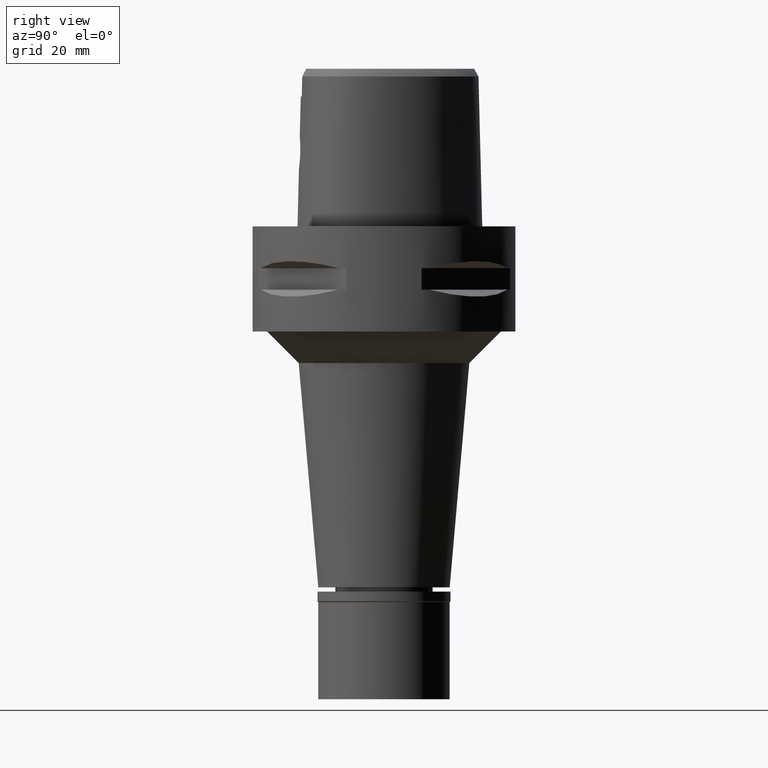
[diagram: clean part render]
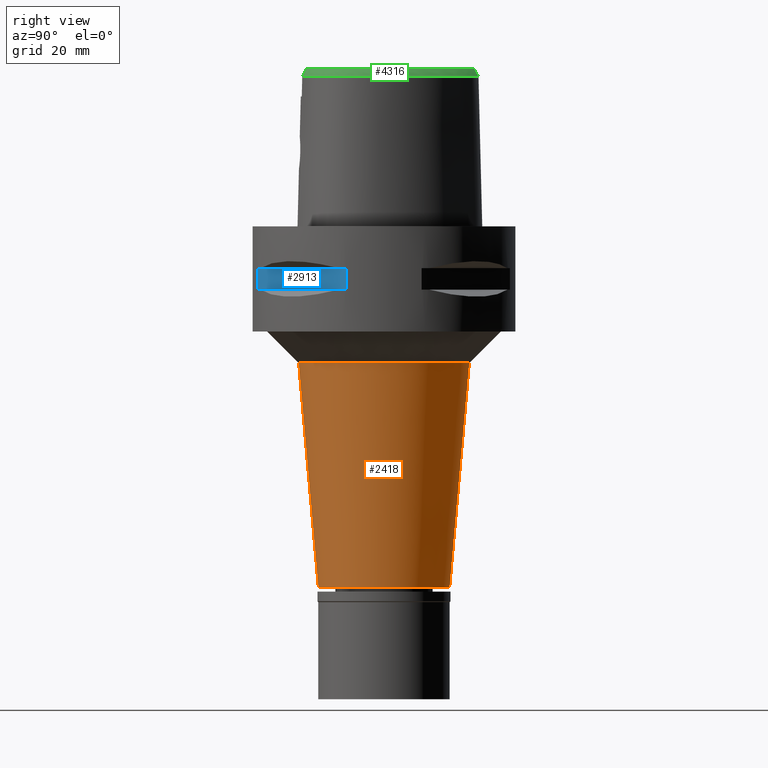
[diagram: same view with three faces highlighted in distinct colors, each labeled with its STEP entity id]
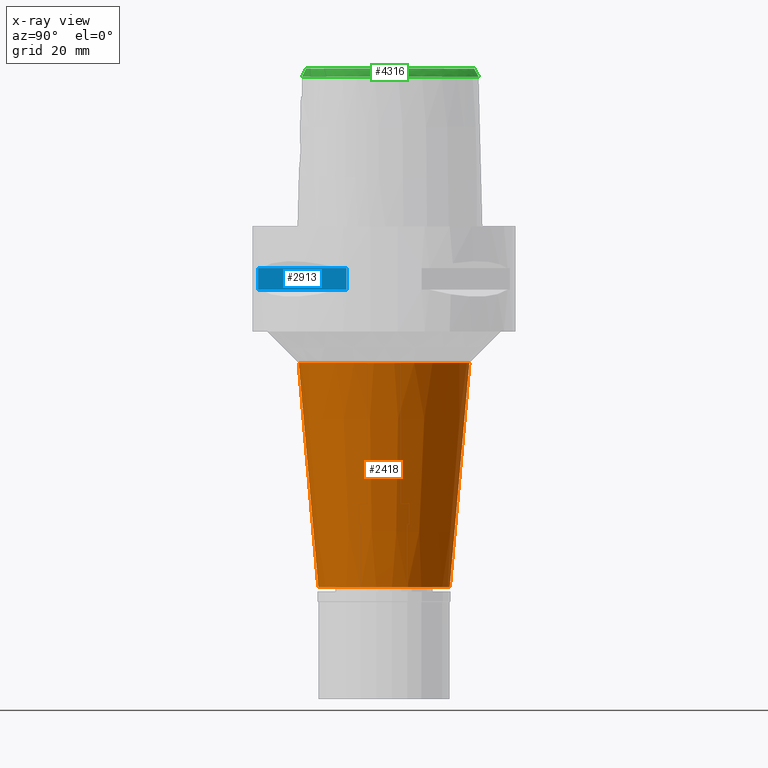
[diagram: x-ray of the same camera — body ghosted, the three highlighted faces saturated]
A machine part, right view with three faces highlighted in distinct colors.
The next image is the same camera in x-ray (body ghosted, the three faces saturated) — at least one of them is partly hidden behind the body in this view.
Their STEP definitions:

[orange] entity #2418 — the highlighted conical surface has half-angle 5 deg.
#1 = CARTESIAN_POINT ( 'NONE',  ( 0.0000000000000000000, -16.23576593255999967, -26.00000000000000000 ) ) ;
#8 = DIRECTION ( 'NONE',  ( 0.0000000000000000000, 0.0000000000000000000, 1.000000000000000000 ) ) ;
#245 = LINE ( 'NONE', #991, #1758 ) ;
#388 = AXIS2_PLACEMENT_3D ( 'NONE', #2282, #8, #2217 ) ;
#462 = ORIENTED_EDGE ( 'NONE', *, *, #1954, .T. ) ;
#704 = AXIS2_PLACEMENT_3D ( 'NONE', #4837, #1785, #3682 ) ;
#958 = DIRECTION ( 'NONE',  ( 0.0000000000000000000, 0.08715574274769373464, -0.9961946980917424366 ) ) ;
#991 = CARTESIAN_POINT ( 'NONE',  ( 0.0000000000000000000, 16.23576593255999967, -26.00000000000000000 ) ) ;
#1004 = AXIS2_PLACEMENT_3D ( 'NONE', #2919, #3740, #4471 ) ;
#1366 = LINE ( 'NONE', #2499, #2512 ) ;
#1403 = ORIENTED_EDGE ( 'NONE', *, *, #1922, .F. ) ;
#1571 = CIRCLE ( 'NONE', #1004, 16.23576593255999967 ) ;
#1758 = VECTOR ( 'NONE', #4061, 1000.000000000000000 ) ;
#1785 = DIRECTION ( 'NONE',  ( 0.0000000000000000000, 0.0000000000000000000, 1.000000000000000000 ) ) ;
#1825 = VERTEX_POINT ( 'NONE', #3790 ) ;
#1888 = VERTEX_POINT ( 'NONE', #1 ) ;
#1922 = EDGE_CURVE ( 'NONE', #3692, #3271, #245, .T. ) ;
#1954 = EDGE_CURVE ( 'NONE', #1825, #3271, #4713, .T. ) ;
#2049 = CARTESIAN_POINT ( 'NONE',  ( 0.0000000000000000000, 12.50000000000000000, -68.70000000000000284 ) ) ;
#2217 = DIRECTION ( 'NONE',  ( 0.0000000000000000000, 1.000000000000000000, 0.0000000000000000000 ) ) ;
#2282 = CARTESIAN_POINT ( 'NONE',  ( 0.0000000000000000000, 0.0000000000000000000, -47.35000000000000142 ) ) ;
#2418 = ADVANCED_FACE ( 'NONE', ( #2622 ), #4632, .T. ) ;
#2497 = ORIENTED_EDGE ( 'NONE', *, *, #4007, .F. ) ;
#2499 = CARTESIAN_POINT ( 'NONE',  ( 0.0000000000000000000, -16.23576593255999967, -26.00000000000000000 ) ) ;
#2512 = VECTOR ( 'NONE', #958, 1000.000000000000000 ) ;
#2622 = FACE_OUTER_BOUND ( 'NONE', #4663, .T. ) ;
#2919 = CARTESIAN_POINT ( 'NONE',  ( 0.0000000000000000000, 0.0000000000000000000, -26.00000000000000000 ) ) ;
#3271 = VERTEX_POINT ( 'NONE', #2049 ) ;
#3682 = DIRECTION ( 'NONE',  ( 0.0000000000000000000, -1.000000000000000000, 0.0000000000000000000 ) ) ;
#3692 = VERTEX_POINT ( 'NONE', #4875 ) ;
#3740 = DIRECTION ( 'NONE',  ( 0.0000000000000000000, 0.0000000000000000000, 1.000000000000000000 ) ) ;
#3790 = CARTESIAN_POINT ( 'NONE',  ( 0.0000000000000000000, -12.50000000000000000, -68.70000000000000284 ) ) ;
#4007 = EDGE_CURVE ( 'NONE', #1888, #3692, #1571, .T. ) ;
#4048 = ORIENTED_EDGE ( 'NONE', *, *, #4557, .T. ) ;
#4061 = DIRECTION ( 'NONE',  ( 0.0000000000000000000, -0.08715574274769373464, -0.9961946980917424366 ) ) ;
#4471 = DIRECTION ( 'NONE',  ( 0.0000000000000000000, -1.000000000000000000, 0.0000000000000000000 ) ) ;
#4557 = EDGE_CURVE ( 'NONE', #1888, #1825, #1366, .T. ) ;
#4632 = CONICAL_SURFACE ( 'NONE', #388, 14.36788296627999983, 0.08726646259969973729 ) ;
#4663 = EDGE_LOOP ( 'NONE', ( #2497, #4048, #462, #1403 ) ) ;
#4713 = CIRCLE ( 'NONE', #704, 12.50000000000000000 ) ;
#4837 = CARTESIAN_POINT ( 'NONE',  ( 0.0000000000000000000, 0.0000000000000000000, -68.70000000000000284 ) ) ;
#4875 = CARTESIAN_POINT ( 'NONE',  ( 0.0000000000000000000, 16.23576593255999967, -26.00000000000000000 ) ) ;

[blue] entity #2913 — the highlighted planar face has unit normal (-0.7071, 0.7071, 0).
#143 = CARTESIAN_POINT ( 'NONE',  ( 7.159921374235000080, -23.95277699797999915, -7.950000000000000178 ) ) ;
#317 = VECTOR ( 'NONE', #2649, 1000.000000000000000 ) ;
#394 = LINE ( 'NONE', #4631, #317 ) ;
#511 = VERTEX_POINT ( 'NONE', #3043 ) ;
#574 = ORIENTED_EDGE ( 'NONE', *, *, #4004, .T. ) ;
#597 = ORIENTED_EDGE ( 'NONE', *, *, #1608, .F. ) ;
#636 = AXIS2_PLACEMENT_3D ( 'NONE', #4746, #3882, #4184 ) ;
#1040 = CARTESIAN_POINT ( 'NONE',  ( 23.95277699797999915, -7.159921374230999724, -12.05000000000000071 ) ) ;
#1181 = EDGE_CURVE ( 'NONE', #511, #3771, #2145, .T. ) ;
#1205 = ORIENTED_EDGE ( 'NONE', *, *, #2861, .T. ) ;
#1386 = DIRECTION ( 'NONE',  ( 0.7071067811865474617, 0.7071067811865474617, 0.0000000000000000000 ) ) ;
#1447 = DIRECTION ( 'NONE',  ( 0.0000000000000000000, 0.0000000000000000000, 1.000000000000000000 ) ) ;
#1595 = VECTOR ( 'NONE', #1386, 1000.000000000000114 ) ;
#1608 = EDGE_CURVE ( 'NONE', #2136, #3771, #4768, .T. ) ;
#1812 = DIRECTION ( 'NONE',  ( 0.7071067811865474617, 0.7071067811865474617, 0.0000000000000000000 ) ) ;
#1860 = LINE ( 'NONE', #4139, #1970 ) ;
#1970 = VECTOR ( 'NONE', #1812, 1000.000000000000114 ) ;
#2131 = ORIENTED_EDGE ( 'NONE', *, *, #1181, .T. ) ;
#2136 = VERTEX_POINT ( 'NONE', #143 ) ;
#2145 = LINE ( 'NONE', #1040, #3571 ) ;
#2339 = PLANE ( 'NONE',  #636 ) ;
#2549 = CARTESIAN_POINT ( 'NONE',  ( 7.159921374230999724, -23.95277699797999915, -12.05000000000000071 ) ) ;
#2649 = DIRECTION ( 'NONE',  ( 0.0000000000000000000, 0.0000000000000000000, -1.000000000000000000 ) ) ;
#2861 = EDGE_CURVE ( 'NONE', #2136, #4570, #394, .T. ) ;
#2913 = ADVANCED_FACE ( 'NONE', ( #3418 ), #2339, .F. ) ;
#3043 = CARTESIAN_POINT ( 'NONE',  ( 23.95277699797999915, -7.159921374235000080, -12.05000000000000071 ) ) ;
#3418 = FACE_OUTER_BOUND ( 'NONE', #4016, .T. ) ;
#3571 = VECTOR ( 'NONE', #1447, 1000.000000000000000 ) ;
#3771 = VERTEX_POINT ( 'NONE', #4690 ) ;
#3882 = DIRECTION ( 'NONE',  ( -0.7071067811865475727, 0.7071067811865475727, 0.0000000000000000000 ) ) ;
#4004 = EDGE_CURVE ( 'NONE', #4570, #511, #1860, .T. ) ;
#4016 = EDGE_LOOP ( 'NONE', ( #597, #1205, #574, #2131 ) ) ;
#4023 = CARTESIAN_POINT ( 'NONE',  ( 7.159921374230999724, -23.95277699797999915, -7.950000000000000178 ) ) ;
#4139 = CARTESIAN_POINT ( 'NONE',  ( 7.159921374230999724, -23.95277699797999915, -12.05000000000000071 ) ) ;
#4184 = DIRECTION ( 'NONE',  ( 0.0000000000000000000, 0.0000000000000000000, 1.000000000000000000 ) ) ;
#4570 = VERTEX_POINT ( 'NONE', #2549 ) ;
#4631 = CARTESIAN_POINT ( 'NONE',  ( 7.159921374230999724, -23.95277699797999915, -7.950000000000000178 ) ) ;
#4690 = CARTESIAN_POINT ( 'NONE',  ( 23.95277699797999915, -7.159921374230999724, -7.950000000000000178 ) ) ;
#4746 = CARTESIAN_POINT ( 'NONE',  ( 26.16295090389999700, -4.949747468305999654, -7.950000000000000178 ) ) ;
#4768 = LINE ( 'NONE', #4023, #1595 ) ;

[green] entity #4316 — the highlighted face is a freeform B-spline surface patch.
#7 = CARTESIAN_POINT ( 'NONE',  ( 14.08238499151866563, -9.704590128438235652, 29.99999999999807088 ) ) ;
#14 = CARTESIAN_POINT ( 'NONE',  ( 5.384842991242999588, 15.80204699020999826, 29.55372573867999719 ) ) ;
#32 = CARTESIAN_POINT ( 'NONE',  ( 16.11273027397118085, -2.627494158581110018, 29.99999999999823075 ) ) ;
#37 = CARTESIAN_POINT ( 'NONE',  ( 2.658631310221999833, 17.68984271891000049, 28.38014653808000176 ) ) ;
#44 = CARTESIAN_POINT ( 'NONE',  ( 1.921862268368000004, -14.76538549806000056, 30.14051252930000047 ) ) ;
#58 = CARTESIAN_POINT ( 'NONE',  ( 15.71128456931417894, -6.534031654963433411, 30.00000000000196820 ) ) ;
#66 = CARTESIAN_POINT ( 'NONE',  ( 3.052010382550000234, 16.53105565499000207, 30.14051269513999998 ) ) ;
#71 = CARTESIAN_POINT ( 'NONE',  ( 2.133047545504000109, -15.40931671758000121, 28.96693593891000162 ) ) ;
#76 = ORIENTED_EDGE ( 'NONE', *, *, #3794, .F. ) ;
#90 = CARTESIAN_POINT ( 'NONE',  ( -0.3074208703755999528, 17.07029888960000363, 30.14051260544999877 ) ) ;
#95 = CARTESIAN_POINT ( 'NONE',  ( 2.432233337671000140, -15.38495831886999987, 28.96693593251000109 ) ) ;
#119 = CARTESIAN_POINT ( 'NONE',  ( 6.811174486074000001, -14.61620733319000109, 28.96693786959999883 ) ) ;
#126 = CARTESIAN_POINT ( 'NONE',  ( 3.168920890822999770, -15.55911073834000113, 28.52071374672999582 ) ) ;
#149 = CARTESIAN_POINT ( 'NONE',  ( 12.38664714351000029, -12.06075710862000072, 28.96693586676999743 ) ) ;
#154 = CARTESIAN_POINT ( 'NONE',  ( -2.941211737637999918E-11, 17.98202997909999823, 28.52071728569000086 ) ) ;
#160 = CARTESIAN_POINT ( 'NONE',  ( 11.36765809995644538, -12.04801986072844322, 30.00000000000396128 ) ) ;
#170 = CARTESIAN_POINT ( 'NONE',  ( 14.08810199278999953, -10.57731862949999879, 28.96693530919999660 ) ) ;
#191 = CARTESIAN_POINT ( 'NONE',  ( 14.65177458938000044, -9.369218276904998532, 29.55372394577999984 ) ) ;
#197 = CARTESIAN_POINT ( 'NONE',  ( 16.01658383235200134, -8.155509186612746930, 28.52071728562172837 ) ) ;
#215 = CARTESIAN_POINT ( 'NONE',  ( 15.40052568780000009, 4.453192718785999205, 28.38014655049000368 ) ) ;
#243 = CARTESIAN_POINT ( 'NONE',  ( 16.37561560669000116, -3.537278494618999680, 29.55372404629999750 ) ) ;
#267 = CARTESIAN_POINT ( 'NONE',  ( 15.95405015895000034, 1.814142231963999929, 28.96693759024000059 ) ) ;
#282 = EDGE_LOOP ( 'NONE', ( #1316, #4919, #1368, #76 ) ) ;
#296 = CARTESIAN_POINT ( 'NONE',  ( 16.28938000961999677, -1.628007936664999988, 29.55372382860000258 ) ) ;
#312 = CARTESIAN_POINT ( 'NONE',  ( 2.935843368207930126, -15.25651436815354955, 29.10537844853215361 ) ) ;
#319 = CARTESIAN_POINT ( 'NONE',  ( 16.25451265234999809, 0.6177666175659000114, 28.96693787772999684 ) ) ;
#341 = CARTESIAN_POINT ( 'NONE',  ( 4.000709298667000091, 16.86754875232999851, 28.96693596017000161 ) ) ;
#356 = CARTESIAN_POINT ( 'NONE',  ( 7.700998872106077364, 13.84384558891734862, 30.00000000000011013 ) ) ;
#362 = CARTESIAN_POINT ( 'NONE',  ( 6.004271154259999577, 15.02806850023000074, 30.14051227387000154 ) ) ;
#368 = CARTESIAN_POINT ( 'NONE',  ( 3.237448863581000147, -15.63618251891999833, 28.38014735312000170 ) ) ;
#391 = CARTESIAN_POINT ( 'NONE',  ( 10.97319805495000189, 11.82804331828999977, 28.38014620969000035 ) ) ;
#403 = CARTESIAN_POINT ( 'NONE',  ( 9.420872132874633209, 12.20574557692214412, 30.00000000000486367 ) ) ;
#411 = CARTESIAN_POINT ( 'NONE',  ( 2.391487689239999881, 16.73975032641000027, 30.14051262350000115 ) ) ;
#438 = CARTESIAN_POINT ( 'NONE',  ( 10.21869535375999938, 11.19221274396999988, 30.14051265197999996 ) ) ;
#446 = FACE_OUTER_BOUND ( 'NONE', #282, .T. ) ;
#489 = CARTESIAN_POINT ( 'NONE',  ( 0.04121547371527999742, 17.73777056367000071, 28.96693552842999964 ) ) ;
#494 = CARTESIAN_POINT ( 'NONE',  ( 7.967773323592998835, -14.26331133054999967, 28.96693740293999753 ) ) ;
#501 = CARTESIAN_POINT ( 'NONE',  ( 8.702202469521727934, -14.36510984285853709, 28.52071728562172837 ) ) ;
#509 = CARTESIAN_POINT ( 'NONE',  ( -0.5036733629276000102, 17.71834787971000225, 28.96693513610000181 ) ) ;
#516 = CARTESIAN_POINT ( 'NONE',  ( 13.84811418115999793, -10.35229244706000173, 29.55372396117999756 ) ) ;
#544 = CARTESIAN_POINT ( 'NONE',  ( 11.32585868520000005, -11.98125551210000062, 30.14051255302999976 ) ) ;
#566 = CARTESIAN_POINT ( 'NONE',  ( 9.861911559301999475, -13.15199557610000092, 29.55372391046000047 ) ) ;
#570 = CARTESIAN_POINT ( 'NONE',  ( 10.91764517732714701, 11.98972036053745249, 28.52071728562172837 ) ) ;
#587 = CARTESIAN_POINT ( 'NONE',  ( 10.14129968424000161, -13.74757697528999856, 28.38014647311999994 ) ) ;
#594 = CARTESIAN_POINT ( 'NONE',  ( 16.79165444020016906, -0.3537785292841598705, 28.52071728562172837 ) ) ;
#619 = CARTESIAN_POINT ( 'NONE',  ( 15.82504009140000001, -7.948414864584999684, 28.96693559200999957 ) ) ;
#646 = CARTESIAN_POINT ( 'NONE',  ( 16.04671018212999911, -3.532260125042999910, 30.14051258635999986 ) ) ;
#673 = CARTESIAN_POINT ( 'NONE',  ( 15.95231308912999779, -6.601166305710000515, 29.55372395456999968 ) ) ;
#694 = CARTESIAN_POINT ( 'NONE',  ( 16.00715878721999630, -4.367842876386000661, 30.14051252060000152 ) ) ;
#716 = CARTESIAN_POINT ( 'NONE',  ( 17.03342645580999815, -3.547315233773000287, 28.38014696616999899 ) ) ;
#734 = CARTESIAN_POINT ( 'NONE',  ( 13.18218336246000000, 8.168799837366000460, 28.96693536031999727 ) ) ;
#741 = CARTESIAN_POINT ( 'NONE',  ( 3.159961295565999695, -14.98314818236999990, 29.55372415290000276 ) ) ;
#751 = CARTESIAN_POINT ( 'NONE',  ( 6.048015628560480472, 15.09357031579971675, 30.00000000000443023 ) ) ;
#760 = CARTESIAN_POINT ( 'NONE',  ( 11.84323152169000082, 10.73870846447000105, 28.38014746786999964 ) ) ;
#782 = CARTESIAN_POINT ( 'NONE',  ( 3.078265684543687986, 16.60532678263555439, 29.99999999999645439 ) ) ;
#787 = CARTESIAN_POINT ( 'NONE',  ( 3.161654014662999668, 16.84121610174999972, 29.55372370078000088 ) ) ;
#803 = CARTESIAN_POINT ( 'NONE',  ( 15.04259016984781283, -8.247723288182768897, 30.00000000000085976 ) ) ;
#811 = CARTESIAN_POINT ( 'NONE',  ( 1.893266613400999887, 17.53850787448999782, 28.96693556228999711 ) ) ;
#829 = CARTESIAN_POINT ( 'NONE',  ( 12.65514534656777457, -11.12483370673908922, 30.00000000000073896 ) ) ;
#836 = CARTESIAN_POINT ( 'NONE',  ( 2.569583436560999967, 17.37314525473999893, 28.96693523321999919 ) ) ;
#867 = CARTESIAN_POINT ( 'NONE',  ( 11.67497214465999988, -12.53887893467000048, 28.96693575129000209 ) ) ;
#875 = CARTESIAN_POINT ( 'NONE',  ( 13.06460231238018643, -11.91950040983343584, 28.52071728562172837 ) ) ;
#884 = CARTESIAN_POINT ( 'NONE',  ( -0.3321134945152000584, 17.72742049228000027, 28.96693536585999951 ) ) ;
#890 = CARTESIAN_POINT ( 'NONE',  ( 11.50041541492999997, -12.26006722339000099, 29.55372415216000093 ) ) ;
#906 = CARTESIAN_POINT ( 'NONE',  ( -0.4668346977426000022, 17.06194383161999895, 30.14051263669999869 ) ) ;
#911 = CARTESIAN_POINT ( 'NONE',  ( 12.60526061847999912, -11.06386714269999949, 30.14051262002999820 ) ) ;
#942 = CARTESIAN_POINT ( 'NONE',  ( 9.722217496833000183, -12.85420487650999988, 30.14051262913000073 ) ) ;
#967 = CARTESIAN_POINT ( 'NONE',  ( 5.568859615817999931, -14.92117509047000112, 28.96693607114999836 ) ) ;
#989 = CARTESIAN_POINT ( 'NONE',  ( 14.79032469554000073, 4.207552095258000335, 29.55372393177999868 ) ) ;
#1020 = CARTESIAN_POINT ( 'NONE',  ( 13.60462689014999960, 6.754302847915000463, 29.55372408130000039 ) ) ;
#1046 = CARTESIAN_POINT ( 'NONE',  ( 14.18547196205000027, 7.062997818472999789, 28.38014709322000328 ) ) ;
#1074 = CARTESIAN_POINT ( 'NONE',  ( 16.47329664958999729, -0.5202430178087000812, 28.96693603917999837 ) ) ;
#1090 = CARTESIAN_POINT ( 'NONE',  ( -6.301949014338000629E-11, 17.15328888647999861, 30.00000000000000000 ) ) ;
#1096 = CARTESIAN_POINT ( 'NONE',  ( 15.44272454256999971, -7.122436889924999903, 30.14051258420000323 ) ) ;
#1113 = CARTESIAN_POINT ( 'NONE',  ( 0.1912597614439708604, 17.15328888648586059, 30.00000000000288480 ) ) ;
#1121 = CARTESIAN_POINT ( 'NONE',  ( 1.241796034502999913, 17.65204401532000134, 28.96693517623000247 ) ) ;
#1142 = CARTESIAN_POINT ( 'NONE',  ( 12.13398532104000083, 9.201179046687000707, 29.55372432887000045 ) ) ;
#1171 = CARTESIAN_POINT ( 'NONE',  ( 3.741921041058999808, 16.26266237366999690, 30.14051252462000008 ) ) ;
#1190 = CARTESIAN_POINT ( 'NONE',  ( 15.68929135223808657, 0.4919393172822907889, 30.00000000000152767 ) ) ;
#1197 = CARTESIAN_POINT ( 'NONE',  ( 11.86140099238999923, 9.017150876663999171, 30.14051249738999871 ) ) ;
#1222 = CARTESIAN_POINT ( 'NONE',  ( 8.729671319433998988, 13.25525514005000005, 29.55372469446000139 ) ) ;
#1239 = CARTESIAN_POINT ( 'NONE',  ( 2.406543924163999648, -14.80491841401999942, 30.00000000000000000 ) ) ;
#1252 = CARTESIAN_POINT ( 'NONE',  ( 6.724245598578000305, -14.29899810459999898, 29.55372506724999937 ) ) ;
#1267 = CARTESIAN_POINT ( 'NONE',  ( -0.5220926955200999586, 18.04654990375000168, 28.38014638581000071 ) ) ;
#1274 = CARTESIAN_POINT ( 'NONE',  ( 13.81147726622999983, -11.31863543819000029, 28.38014658610000041 ) ) ;
#1294 = CARTESIAN_POINT ( 'NONE',  ( 12.81358207582999853, -11.31846697629999987, 29.55372393934999664 ) ) ;
#1316 = ORIENTED_EDGE ( 'NONE', *, *, #3941, .F. ) ;
#1321 = CARTESIAN_POINT ( 'NONE',  ( 10.88175423206000048, -13.00339884647999966, 28.96693530345999790 ) ) ;
#1326 = CARTESIAN_POINT ( 'NONE',  ( 7.523733068098906074, 15.26501041874047182, 28.52071728562172837 ) ) ;
#1339 = CARTESIAN_POINT ( 'NONE',  ( 0.6328249377374000062, 18.04605711805999846, 28.38014651065000393 ) ) ;
#1347 = CARTESIAN_POINT ( 'NONE',  ( 14.97818226747999937, -8.872772446718999007, 29.55372401636999768 ) ) ;
#1352 = CARTESIAN_POINT ( 'NONE',  ( 5.902447799197267919, -15.16907841529366685, 28.52071728562172837 ) ) ;
#1358 = VERTEX_POINT ( 'NONE', #3004 ) ;
#1368 = ORIENTED_EDGE ( 'NONE', *, *, #1381, .T. ) ;
#1373 = CARTESIAN_POINT ( 'NONE',  ( 16.12711015945999904, -8.078767691887000169, 28.38014710066000035 ) ) ;
#1381 = EDGE_CURVE ( 'NONE', #4766, #4018, #3978, .T. ) ;
#1399 = CARTESIAN_POINT ( 'NONE',  ( 16.79788139621000198, -0.4670338128402999889, 28.38014780184000330 ) ) ;
#1426 = CARTESIAN_POINT ( 'NONE',  ( 15.87958186209999845, 3.162385515932999880, 28.38014673181000092 ) ) ;
#1452 = CARTESIAN_POINT ( 'NONE',  ( 15.75299259312000189, -7.231838119275000309, 29.55372405313000073 ) ) ;
#1479 = CARTESIAN_POINT ( 'NONE',  ( 15.63539533435999829, -6.512893918699000473, 30.14051261523999869 ) ) ;
#1498 = CARTESIAN_POINT ( 'NONE',  ( 6.186950563102000089, 15.30160780177000035, 29.55372503878999879 ) ) ;
#1526 = CARTESIAN_POINT ( 'NONE',  ( 7.863115827153000836, 14.03435638335000135, 29.55372413134000098 ) ) ;
#1550 = CARTESIAN_POINT ( 'NONE',  ( 6.815713255539999516, 14.45216265505999864, 30.14051266080999980 ) ) ;
#1567 = CARTESIAN_POINT ( 'NONE',  ( 15.39668103802219434, 1.657188505494436637, 29.99999999999986500 ) ) ;
#1574 = CARTESIAN_POINT ( 'NONE',  ( 9.363485995477999424, 12.15180323787999939, 30.14051245109999755 ) ) ;
#1582 = CARTESIAN_POINT ( 'NONE',  ( 1.945546332399000100, -15.09326875030000004, 29.55372422752999739 ) ) ;
#1597 = CARTESIAN_POINT ( 'NONE',  ( -6.301949014338000629E-11, 17.15328888647999861, 30.00000000000000000 ) ) ;
#1604 = CARTESIAN_POINT ( 'NONE',  ( 10.72169715455000016, 11.61609979352000011, 28.96693502379000051 ) ) ;
#1621 = CARTESIAN_POINT ( 'NONE',  ( 12.04928217775903576, -11.59002493207010609, 30.00000000000034106 ) ) ;
#1633 = CARTESIAN_POINT ( 'NONE',  ( 14.97258381857000131, -8.211583783153999505, 30.14051263826999616 ) ) ;
#1655 = CARTESIAN_POINT ( 'NONE',  ( 4.147325389105999349, -14.51990146791000136, 30.14051265628999943 ) ) ;
#1683 = CARTESIAN_POINT ( 'NONE',  ( 13.23022499054000001, -11.82766664348999974, 28.38014657800000151 ) ) ;
#1688 = CARTESIAN_POINT ( 'NONE',  ( 0.6295828025440908249, 17.98202997637302403, 28.52071728562172837 ) ) ;
#1693 = CARTESIAN_POINT ( 'NONE',  ( 7.783816186093288181, -13.71424622167448781, 30.00000000000367706 ) ) ;
#1704 = CARTESIAN_POINT ( 'NONE',  ( 14.32808980442000113, -10.80234481194999852, 28.38014665721000185 ) ) ;
#1729 = CARTESIAN_POINT ( 'NONE',  ( 14.92014046847000053, -9.559532954651999148, 28.96693527354999631 ) ) ;
#1735 = CARTESIAN_POINT ( 'NONE',  ( 15.07117004566646656, -9.793013887526274885, 28.52071728562172837 ) ) ;
#1760 = CARTESIAN_POINT ( 'NONE',  ( 16.06326064367999962, -7.341239348624999828, 28.96693552205999822 ) ) ;
#1783 = CARTESIAN_POINT ( 'NONE',  ( 16.76252015593999900, -6.055132314039999741, 28.38014653006000287 ) ) ;
#1808 = CARTESIAN_POINT ( 'NONE',  ( 16.58614859865999946, -6.777711079731999710, 28.38014663320999986 ) ) ;
#1833 = CARTESIAN_POINT ( 'NONE',  ( 15.79637400819999726, -5.853715158355999648, 30.14051262418999855 ) ) ;
#1854 = CARTESIAN_POINT ( 'NONE',  ( 14.94579515957999938, 2.843627847750000104, 30.14051260668999888 ) ) ;
#1871 = CARTESIAN_POINT ( 'NONE',  ( 11.92667412982201824, 9.061218325782480321, 30.00000000000257216 ) ) ;
#1878 = CARTESIAN_POINT ( 'NONE',  ( 12.67915397834000046, 9.569235386735000404, 28.38014799182999681 ) ) ;
#1895 = CARTESIAN_POINT ( 'NONE',  ( 10.27891984618326582, 11.24296481357247046, 30.00000000000193978 ) ) ;
#1901 = CARTESIAN_POINT ( 'NONE',  ( 6.552309380787000315, 15.84868640482999957, 28.38015056861999952 ) ) ;
#1907 = CARTESIAN_POINT ( 'NONE',  ( 2.081702592979000066, -14.75383747165999893, 30.14051252751000121 ) ) ;
#1918 = CARTESIAN_POINT ( 'NONE',  ( 15.29323375804932716, -7.718923543003278986, 29.99999999999997868 ) ) ;
#1925 = CARTESIAN_POINT ( 'NONE',  ( 8.956554802729000286, 13.49338032572999957, 28.96693700663000115 ) ) ;
#1950 = CARTESIAN_POINT ( 'NONE',  ( 2.480535562900000102, 17.05644779057999827, 29.55372392835999662 ) ) ;
#1967 = CARTESIAN_POINT ( 'NONE',  ( 1.161482229273798517, 17.07843133414732506, 30.00000000000662581 ) ) ;
#1973 = CARTESIAN_POINT ( 'NONE',  ( 4.908539869882999618, 16.80845767078999842, 28.38015184312999750 ) ) ;
#1980 = CARTESIAN_POINT ( 'NONE',  ( 2.107375069241999910, -15.08157709462000007, 29.55372423321000142 ) ) ;
#1996 = CARTESIAN_POINT ( 'NONE',  ( 8.816245487876752662, -13.33426548781559617, 30.00000000000306954 ) ) ;
#2024 = CARTESIAN_POINT ( 'NONE',  ( -0.3444598065851000035, 18.05598129361999682, 28.38014674607000032 ) ) ;
#2030 = CARTESIAN_POINT ( 'NONE',  ( 5.499423431311999622, -14.59968869839000050, 29.55372429033999992 ) ) ;
#2052 = CARTESIAN_POINT ( 'NONE',  ( 6.898103373569000496, -14.93341656177999965, 28.38015067195000185 ) ) ;
#2080 = CARTESIAN_POINT ( 'NONE',  ( 5.429987246807000290, -14.27820230630999987, 30.14051250952000061 ) ) ;
#2084 = CARTESIAN_POINT ( 'NONE',  ( 1.893775678556047115, 17.84807068955350218, 28.52071728562172837 ) ) ;
#2101 = CARTESIAN_POINT ( 'NONE',  ( 14.53074662256000060, -10.07126478230000011, 28.96693568757999770 ) ) ;
#2107 = CARTESIAN_POINT ( 'NONE',  ( 16.85489147434073942, -5.354527548487850730, 28.52071728562172837 ) ) ;
#2125 = CARTESIAN_POINT ( 'NONE',  ( 8.787011040104999893, -13.26112865356000015, 30.14051260703000068 ) ) ;
#2151 = CARTESIAN_POINT ( 'NONE',  ( 16.11842272411000110, -5.920854210249999028, 29.55372392614999910 ) ) ;
#2177 = CARTESIAN_POINT ( 'NONE',  ( 16.61650944796999951, -1.593682640597000155, 28.96693500230000140 ) ) ;
#2201 = CARTESIAN_POINT ( 'NONE',  ( 15.92183250479000201, -5.140425741751999844, 30.14051259983000008 ) ) ;
#2214 = CARTESIAN_POINT ( 'NONE',  ( 3.168920890822999770, -15.55911073834000113, 28.52071374672999582 ) ) ;
#2222 = CARTESIAN_POINT ( 'NONE',  ( 16.99107389773000065, -4.444011068304999590, 28.38014772424000043 ) ) ;
#2243 = CARTESIAN_POINT ( 'NONE',  ( 15.25705739375000114, 2.949880403811000029, 29.55372398172999837 ) ) ;
#2264 = CARTESIAN_POINT ( 'NONE',  ( 12.61840452982999849, 7.829939232066998933, 30.14051260620999884 ) ) ;
#2288 = CARTESIAN_POINT ( 'NONE',  ( 4.612230013747000257, 16.22106365799999850, 29.55372538991999676 ) ) ;
#2307 = CARTESIAN_POINT ( 'NONE',  ( 13.38374903490186085, 6.636915464740175352, 30.00000000000343903 ) ) ;
#2309 = LINE ( 'NONE', #4127, #2454 ) ;
#2313 = CARTESIAN_POINT ( 'NONE',  ( 3.271297646774999901, 17.15137654851000093, 28.96693470641000090 ) ) ;
#2327 = CARTESIAN_POINT ( 'NONE',  ( 13.66559393375219500, -10.18115111193617217, 30.00000000000306244 ) ) ;
#2335 = CARTESIAN_POINT ( 'NONE',  ( 7.410974982333000227, 15.23916624549999810, 28.38014610787000080 ) ) ;
#2363 = CARTESIAN_POINT ( 'NONE',  ( 2.373596883848000161, -14.73007242907000069, 30.14051252838000039 ) ) ;
#2384 = CARTESIAN_POINT ( 'NONE',  ( 4.251280723409999851, -15.16942524661999947, 28.96693499210000411 ) ) ;
#2409 = CARTESIAN_POINT ( 'NONE',  ( 13.60812636954000077, -10.12726626461000023, 30.14051261315999852 ) ) ;
#2427 = CARTESIAN_POINT ( 'NONE',  ( -0.3197671824454000333, 17.39885969094000373, 29.55372398564999870 ) ) ;
#2434 = CARTESIAN_POINT ( 'NONE',  ( 7.758795199190000602, -13.63956496121999962, 30.14051232837999805 ) ) ;
#2446 = CARTESIAN_POINT ( 'NONE',  ( 13.19176257967162158, -10.65479018522716714, 30.00000000000438760 ) ) ;
#2454 = VECTOR ( 'NONE', #4298, 1000.000000000000000 ) ;
#2462 = CARTESIAN_POINT ( 'NONE',  ( 6.637316711081999721, -13.98178887600999865, 30.14051226489999991 ) ) ;
#2484 = CARTESIAN_POINT ( 'NONE',  ( 15.54008742577999946, -9.215192597320001511, 28.38014685754999888 ) ) ;
#2505 = CARTESIAN_POINT ( 'NONE',  ( 14.23764764446999997, 5.482974161589999618, 29.55372425450000051 ) ) ;
#2507 = EDGE_CURVE ( 'NONE', #1358, #4766, #2309, .T. ) ;
#2513 = CARTESIAN_POINT ( 'NONE',  ( 2.406543924163999648, -14.80491841401999942, 30.00000000000000000 ) ) ;
#2535 = CARTESIAN_POINT ( 'NONE',  ( 15.52297002334000098, -7.818062037283000087, 29.55372408335000145 ) ) ;
#2556 = CARTESIAN_POINT ( 'NONE',  ( 17.01983083549000142, -2.586299005654999927, 28.38014670039000009 ) ) ;
#2583 = CARTESIAN_POINT ( 'NONE',  ( 15.93346262738999997, 0.5462957478584999915, 29.55372507075999877 ) ) ;
#2596 = CARTESIAN_POINT ( 'NONE',  ( 1.774127352510514566, 16.97169788998755990, 29.99999999999788614 ) ) ;
#2606 = CARTESIAN_POINT ( 'NONE',  ( 16.66310219422999950, -4.418621670999000273, 28.96693598969000050 ) ) ;
#2626 = CARTESIAN_POINT ( 'NONE',  ( 1.287414890636000120, 17.97786040895000070, 28.38014644872000147 ) ) ;
#2631 = CARTESIAN_POINT ( 'NONE',  ( 2.461551564583000395, -15.71240126377000301, 28.38014763456999745 ) ) ;
#2639 = CARTESIAN_POINT ( 'NONE',  ( 15.51702143705642989, -7.148634146069402284, 29.99999999999621991 ) ) ;
#2646 = CARTESIAN_POINT ( 'NONE',  ( 9.842781532707000736, 12.60233578011999889, 28.96693650069000014 ) ) ;
#2669 = CARTESIAN_POINT ( 'NONE',  ( 7.649955403470000803, 13.78386215437999951, 30.14051255958000297 ) ) ;
#2691 = CARTESIAN_POINT ( 'NONE',  ( 15.99982784346029874, -5.151471542954475069, 29.99999999999904077 ) ) ;
#2696 = CARTESIAN_POINT ( 'NONE',  ( 8.502787836139001243, 13.01712995436999876, 30.14051238228999807 ) ) ;
#2724 = CARTESIAN_POINT ( 'NONE',  ( 10.08242930131999948, 12.82760205123999953, 28.38014852549000011 ) ) ;
#2749 = CARTESIAN_POINT ( 'NONE',  ( 0.5867229764426999949, 17.38966624609000178, 29.55372392079999955 ) ) ;
#2757 = CARTESIAN_POINT ( 'NONE',  ( 15.55728481549000186, -8.513425033738000636, 28.96693512456999997 ) ) ;
#2773 = CARTESIAN_POINT ( 'NONE',  ( 0.04266069986263000546, 18.06672697464999899, 28.38014700098000276 ) ) ;
#2779 = CARTESIAN_POINT ( 'NONE',  ( 4.303258390562000102, -15.49418713596999986, 28.38014616000999979 ) ) ;
#2790 = CARTESIAN_POINT ( 'NONE',  ( 4.159771979224407445, -14.59766906204064085, 30.00000000000368772 ) ) ;
#2801 = CARTESIAN_POINT ( 'NONE',  ( 13.13800602793999950, -10.59720557015000075, 30.14051261932999992 ) ) ;
#2821 = B_SPLINE_CURVE_WITH_KNOTS ( 'NONE', 3,
 ( #2214, #312, #4898, #4527 ),
 .UNSPECIFIED., .F., .F.,
 ( 4, 4 ),
 ( 0.0000000000000000000, 1.000000000000000000 ),
 .UNSPECIFIED. ) ;
#2830 = CARTESIAN_POINT ( 'NONE',  ( 14.02140094571999995, -9.654716762083998205, 30.14051256169000226 ) ) ;
#2857 = CARTESIAN_POINT ( 'NONE',  ( 15.25913484663000119, -9.043982522019000214, 28.96693543696000361 ) ) ;
#2883 = CARTESIAN_POINT ( 'NONE',  ( 16.70452103124999965, -3.542296864195999984, 28.96693550622999780 ) ) ;
#2910 = CARTESIAN_POINT ( 'NONE',  ( 15.63746023188000045, 1.724991313925000158, 29.55372494657000360 ) ) ;
#2941 = CARTESIAN_POINT ( 'NONE',  ( 14.48522419941000017, 4.084731783494000013, 30.14051262241999751 ) ) ;
#2967 = CARTESIAN_POINT ( 'NONE',  ( 15.82412715634999856, -0.6266614277454999327, 30.14051251387000008 ) ) ;
#2987 = CARTESIAN_POINT ( 'NONE',  ( 15.61241260243999918, 0.4748248781511000272, 30.14051226380000159 ) ) ;
#3004 = CARTESIAN_POINT ( 'NONE',  ( -2.941211737637999918E-11, 17.98202997909999823, 28.52071728569000086 ) ) ;
#3011 = CARTESIAN_POINT ( 'NONE',  ( 8.076276250837000958, 14.28485061231999964, 28.96693570310999988 ) ) ;
#3028 = CARTESIAN_POINT ( 'NONE',  ( 3.772905803808013658, 16.33508552418743776, 30.00000000000371259 ) ) ;
#3036 = CARTESIAN_POINT ( 'NONE',  ( 5.218916903884000646, 15.51802211337999893, 30.14051205350000018 ) ) ;
#3058 = CARTESIAN_POINT ( 'NONE',  ( 12.90029394615000058, 7.999369534716000096, 29.55372398326999672 ) ) ;
#3076 = CARTESIAN_POINT ( 'NONE',  ( 16.12546998863012959, -3.533461825553980251, 30.00000000000328981 ) ) ;
#3084 = CARTESIAN_POINT ( 'NONE',  ( 1.757922589123999790, 16.89460305479000013, 30.14051257873000367 ) ) ;
#3090 = CARTESIAN_POINT ( 'NONE',  ( 1.969230396430999841, -15.42115200255000040, 28.96693592575999787 ) ) ;
#3109 = CARTESIAN_POINT ( 'NONE',  ( 1.960938625539999647, 17.86046028434000021, 28.38014705407000093 ) ) ;
#3126 = CARTESIAN_POINT ( 'NONE',  ( 3.130495111450500634, -14.73481892791673609, 29.99999999999862865 ) ) ;
#3140 = CARTESIAN_POINT ( 'NONE',  ( 14.27607378414000117, -9.862990772189998978, 29.55372412463000131 ) ) ;
#3161 = CARTESIAN_POINT ( 'NONE',  ( 11.84952887439000158, -12.81769064596000085, 28.38014735043000059 ) ) ;
#3187 = CARTESIAN_POINT ( 'NONE',  ( 7.863284261391000562, -13.95143814587999920, 29.55372486565999779 ) ) ;
#3193 = CARTESIAN_POINT ( 'NONE',  ( 13.75951381385727856, 7.944084035686202583, 28.52071728562172837 ) ) ;
#3209 = CARTESIAN_POINT ( 'NONE',  ( 12.19502126059999902, -11.79337762912000009, 29.55372420203999795 ) ) ;
#3216 = CARTESIAN_POINT ( 'NONE',  ( 4.422474504765997239, 17.08283549832869141, 28.52071728562172837 ) ) ;
#3238 = CARTESIAN_POINT ( 'NONE',  ( 15.18850634754999973, -9.749847632398999764, 28.38014660131999989 ) ) ;
#3244 = CARTESIAN_POINT ( 'NONE',  ( 14.26907046693052017, -10.79012245165108475, 28.52071728562172837 ) ) ;
#3265 = CARTESIAN_POINT ( 'NONE',  ( 13.93949670171000044, 5.344139989629999477, 30.14051252080000154 ) ) ;
#3269 = CARTESIAN_POINT ( 'NONE',  ( 15.58740368722634528, -8.999391713747257882, 28.52071728562172837 ) ) ;
#3290 = CARTESIAN_POINT ( 'NONE',  ( 16.36264008662000080, -2.616144730098000082, 29.55372397306999943 ) ) ;
#3315 = CARTESIAN_POINT ( 'NONE',  ( 15.56831962791999935, 3.056132959871999955, 28.96693535676999787 ) ) ;
#3342 = CARTESIAN_POINT ( 'NONE',  ( 16.33513049071999745, -4.393232273691999978, 29.55372425514999790 ) ) ;
#3365 = CARTESIAN_POINT ( 'NONE',  ( 16.37352869422999646, -7.450640577975000234, 28.38014699098999927 ) ) ;
#3388 = CARTESIAN_POINT ( 'NONE',  ( 1.150558322237000164, 17.00041122806000260, 30.14051263124999736 ) ) ;
#3407 = CARTESIAN_POINT ( 'NONE',  ( 12.68590586676731569, 7.870511070825057409, 30.00000000000682121 ) ) ;
#3415 = CARTESIAN_POINT ( 'NONE',  ( 13.46407277877000119, 8.338230140014999847, 28.38014673737999871 ) ) ;
#3432 = CARTESIAN_POINT ( 'NONE',  ( 14.44767169633420600, -9.224476417585313115, 30.00000000000399680 ) ) ;
#3440 = CARTESIAN_POINT ( 'NONE',  ( 5.550769078601000217, 16.08607186703999758, 28.96693942386000131 ) ) ;
#3458 = CARTESIAN_POINT ( 'NONE',  ( 16.04058509949143385, -1.654113685487794694, 30.00000000000034817 ) ) ;
#3464 = CARTESIAN_POINT ( 'NONE',  ( 10.47019625414999844, 11.40415626873999955, 29.55372383788000334 ) ) ;
#3489 = CARTESIAN_POINT ( 'NONE',  ( 4.130103427471000010, 17.16999194165999754, 28.38014767794000193 ) ) ;
#3511 = CARTESIAN_POINT ( 'NONE',  ( 5.446614459517288509, -14.35518554873148744, 30.00000000000132516 ) ) ;
#3517 = CARTESIAN_POINT ( 'NONE',  ( 0.6097739570899999295, 17.71786168206999790, 28.96693521573000041 ) ) ;
#3522 = CARTESIAN_POINT ( 'NONE',  ( 2.402915110759999973, -15.05751537397000028, 29.55372423044999763 ) ) ;
#3546 = CARTESIAN_POINT ( 'NONE',  ( 8.072262385794001460, -14.57518451521000102, 28.38014994022000081 ) ) ;
#3552 = CARTESIAN_POINT ( 'NONE',  ( 3.738627708319586240, -15.49270856215191117, 28.52071728562172837 ) ) ;
#3558 = CARTESIAN_POINT ( 'NONE',  ( 2.538962679605270001, -14.79292722369254953, 30.00000000000271783 ) ) ;
#3574 = CARTESIAN_POINT ( 'NONE',  ( 13.02190353319000060, -11.57306680989000114, 28.96693525867999597 ) ) ;
#3595 = CARTESIAN_POINT ( 'NONE',  ( 0.03832502142058000216, 17.07985774171999793, 30.14051258334000138 ) ) ;
#3602 = CARTESIAN_POINT ( 'NONE',  ( 4.199303056258000488, -14.84466335727000086, 29.55372382419999866 ) ) ;
#3624 = CARTESIAN_POINT ( 'NONE',  ( 14.38340871029000034, -9.178903599156999604, 30.14051261800999981 ) ) ;
#3631 = CARTESIAN_POINT ( 'NONE',  ( 16.47905536661493286, -6.962316254603067023, 28.52071728562172837 ) ) ;
#3650 = CARTESIAN_POINT ( 'NONE',  ( 14.78541946098000004, -10.27953879240000035, 28.38014725052000031 ) ) ;
#3679 = CARTESIAN_POINT ( 'NONE',  ( 16.57325843177000380, -5.232681527933999988, 28.96693540717000204 ) ) ;
#3706 = CARTESIAN_POINT ( 'NONE',  ( 16.94363888632999959, -1.559357344529000100, 28.38014617601000111 ) ) ;
#3734 = CARTESIAN_POINT ( 'NONE',  ( 16.14871190296999970, -0.5734522227770999514, 29.55372427651999701 ) ) ;
#3756 = CARTESIAN_POINT ( 'NONE',  ( 16.57556267729999888, 0.6892374872733000313, 28.38015068470000202 ) ) ;
#3774 = CARTESIAN_POINT ( 'NONE',  ( 6.863227115065551942, 14.51498137220489326, 30.00000000000046185 ) ) ;
#3780 = CARTESIAN_POINT ( 'NONE',  ( 4.464075085679000132, 15.92736665161000076, 30.14051216330999949 ) ) ;
#3794 = EDGE_CURVE ( 'NONE', #4797, #4018, #2821, .T. ) ;
#3799 = CARTESIAN_POINT ( 'NONE',  ( 5.258649622039056837, 15.58603480842836575, 30.00000000000020606 ) ) ;
#3805 = CARTESIAN_POINT ( 'NONE',  ( 8.289436674520000992, 14.53534484128000059, 28.38014727487000144 ) ) ;
#3809 = CARTESIAN_POINT ( 'NONE',  ( 3.198705079573000098, -15.30966535063999956, 28.96693575301000223 ) ) ;
#3824 = CARTESIAN_POINT ( 'NONE',  ( 11.11868440496091459, 10.19157821280601794, 30.00000000000078515 ) ) ;
#3831 = CARTESIAN_POINT ( 'NONE',  ( 4.760384941815000381, 16.51476066440000068, 28.96693861652000024 ) ) ;
#3846 = CARTESIAN_POINT ( 'NONE',  ( 15.02033012161908232, 2.869071121501727273, 30.00000000000328626 ) ) ;
#3852 = CARTESIAN_POINT ( 'NONE',  ( 3.380941278888000223, 17.46153699526999858, 28.38014571205000180 ) ) ;
#3871 = CARTESIAN_POINT ( 'NONE',  ( 8.557117433366819625, 13.07415149353145445, 30.00000000000876099 ) ) ;
#3877 = CARTESIAN_POINT ( 'NONE',  ( 11.05583426535999969, 10.14411792774999910, 30.14051254283999981 ) ) ;
#3932 = CARTESIAN_POINT ( 'NONE',  ( 11.03894963793999828, -13.29234401775000052, 28.38014664822000199 ) ) ;
#3941 = EDGE_CURVE ( 'NONE', #1358, #4797, #4168, .T. ) ;
#3949 = CARTESIAN_POINT ( 'NONE',  ( -0.4852540303351000062, 17.39014585566000193, 29.55372388640000025 ) ) ;
#3955 = CARTESIAN_POINT ( 'NONE',  ( 10.00160562177000045, -13.44978627569999929, 28.96693519179000020 ) ) ;
#3978 = B_SPLINE_CURVE_WITH_KNOTS ( 'NONE', 3,
 ( #1090, #1113, #4221, #1967, #2596, #4924, #782, #3028, #4176, #3799, #751, #3774, #356, #3871, #403, #1895, #3824, #1871, #3407, #2307, #4949, #4594, #3846, #1567, #1190, #4552, #3458, #32, #3076, #4621, #2691, #4572, #58, #2639, #1918, #803, #4248, #3432, #7, #2327, #2446, #829, #1621, #160, #4325, #3995, #1996, #1693, #4694, #3511, #2790, #3126, #3558, #1239 ),
 .UNSPECIFIED., .F., .F.,
 ( 4, 1, 1, 1, 1, 1, 1, 1, 1, 1, 1, 1, 1, 1, 1, 1, 1, 1, 1, 1, 1, 1, 1, 1, 1, 1, 1, 1, 1, 1, 1, 1, 1, 1, 1, 1, 1, 1, 1, 1, 1, 1, 1, 1, 1, 1, 1, 1, 1, 1, 1, 4 ),
 ( 0.0000000000000000000, 0.01988587058640001182, 0.03977174117009996124, 0.05965761175399997285, 0.07954348233780006439, 0.09942935292160004490, 0.1193152235055000565, 0.1392010940893000370, 0.1590869646731999376, 0.1789728352568999981, 0.1988587058408000097, 0.2187445764247000213, 0.2386304470083999707, 0.2585163175922999823, 0.2784021881761000738, 0.2982880587598999433, 0.3181739293438000660, 0.3380597999276000465, 0.3579456705113999160, 0.3778315410952000075, 0.3977174116791000191, 0.4176032822630000307, 0.4374891528466999802, 0.4573750234305999918, 0.4772608940143999723, 0.4971467645981999528, 0.5170326351820999644, 0.5369185057659000559, 0.5568043763497000365, 0.5766902469335999371, 0.5965761175174000286, 0.6164619881012000091, 0.6363478586849999896, 0.6562337292689000012, 0.6761195998528000128, 0.6960054704364999623, 0.7158913410203999739, 0.7357772116042000654, 0.7556630821880000459, 0.7755489527718999465, 0.7954348233557000381, 0.8153206939395000186, 0.8352065645232999991, 0.8550924351072000107, 0.8749783056909999912, 0.8948641762747999717, 0.9147500468586799993, 0.9346359174424899718, 0.9545217880263200394, 0.9744076586101599879, 0.9942935291939859477, 1.000000000000000000 ),
 .UNSPECIFIED. ) ;
#3982 = CARTESIAN_POINT ( 'NONE',  ( 13.58698685347000001, -11.07815881551000103, 28.96693526383999640 ) ) ;
#3995 = CARTESIAN_POINT ( 'NONE',  ( 9.755668685252853578, -12.92551394022848754, 30.00000000000346034 ) ) ;
#4009 = CARTESIAN_POINT ( 'NONE',  ( 9.031180468229001335, -13.87197579984999862, 28.96693535425999855 ) ) ;
#4018 = VERTEX_POINT ( 'NONE', #2513 ) ;
#4035 = CARTESIAN_POINT ( 'NONE',  ( 8.909095754166999725, -13.56655222670999983, 29.55372398064999828 ) ) ;
#4059 = CARTESIAN_POINT ( 'NONE',  ( 14.83394952997000082, 5.760642505510999101, 28.38014772189999846 ) ) ;
#4086 = CARTESIAN_POINT ( 'NONE',  ( 16.26923084389999730, -6.689438692720999668, 28.96693529388999977 ) ) ;
#4108 = CARTESIAN_POINT ( 'NONE',  ( 15.09542519166999774, 4.330372407021999770, 28.96693524112999540 ) ) ;
#4127 = CARTESIAN_POINT ( 'NONE',  ( -2.941211737637999918E-11, 17.98202997909999823, 28.52071728569000086 ) ) ;
#4133 = CARTESIAN_POINT ( 'NONE',  ( 15.22089995528000017, -7.687709209981000491, 30.14051257469000333 ) ) ;
#4158 = CARTESIAN_POINT ( 'NONE',  ( 16.44047144002999872, -5.987993262145000273, 28.96693522809999877 ) ) ;
#4168 = B_SPLINE_CURVE_WITH_KNOTS ( 'NONE', 3,
 ( #154, #1688, #2084, #3216, #1326, #570, #3193, #4758, #594, #4737, #2107, #3631, #197, #3269, #1735, #3244, #875, #4784, #501, #1352, #3552, #126 ),
 .UNSPECIFIED., .F., .F.,
 ( 4, 1, 1, 1, 1, 1, 1, 1, 1, 1, 1, 1, 1, 1, 1, 1, 1, 1, 1, 4 ),
 ( 0.0000000000000000000, 0.04404152929334298472, 0.08808305858541752575, 0.1761661171698837014, 0.2642491757542442810, 0.3523322343386048328, 0.4404152929230710223, 0.5284983515073258253, 0.5725398807996118222, 0.6165814100916864327, 0.6606229393839724295, 0.6826437040299567771, 0.7046644686761525112, 0.7266852333222427740, 0.7487059979682271216, 0.7927475272605131185, 0.8367890565526934221, 0.8808305858448737258, 0.9689136444292446582, 1.000000000000000000 ),
 .UNSPECIFIED. ) ;
#4176 = CARTESIAN_POINT ( 'NONE',  ( 4.499552315895819277, 15.99769543814171335, 30.00000000000069988 ) ) ;
#4181 = CARTESIAN_POINT ( 'NONE',  ( 7.212554406734999368, 14.97683171534999857, 28.96693495885000402 ) ) ;
#4186 = CARTESIAN_POINT ( 'NONE',  ( 3.121217511558000091, -14.65663101408999935, 30.14051255279000330 ) ) ;
#4200 = CARTESIAN_POINT ( 'NONE',  ( 5.716695165958999958, 16.37009674387000047, 28.38015310904000188 ) ) ;
#4221 = CARTESIAN_POINT ( 'NONE',  ( 0.5691917915716488974, 17.14006060249255725, 30.00000000000790124 ) ) ;
#4230 = CARTESIAN_POINT ( 'NONE',  ( 3.871315169863000172, 16.56510556299999948, 29.55372424239000040 ) ) ;
#4248 = CARTESIAN_POINT ( 'NONE',  ( 14.76450668990759496, -8.742560395149631347, 30.00000000000070699 ) ) ;
#4253 = CARTESIAN_POINT ( 'NONE',  ( 1.825594601262999994, 17.21655546464000253, 29.55372407051000039 ) ) ;
#4280 = CARTESIAN_POINT ( 'NONE',  ( 11.58076576958000103, 10.54051161890000188, 28.96693582618999940 ) ) ;
#4298 = DIRECTION ( 'NONE',  ( -1.982023983922034733E-11, -0.4887572537803078765, 0.8724198226067148010 ) ) ;
#4313 = CARTESIAN_POINT ( 'NONE',  ( 15.84963531394999947, -8.664345659030001201, 28.38014636771999832 ) ) ;
#4316 = ADVANCED_FACE ( 'NONE', ( #446 ), #4396, .F. ) ;
#4325 = CARTESIAN_POINT ( 'NONE',  ( 10.60500548643675600, -12.49469941440119847, 30.00000000000242295 ) ) ;
#4335 = CARTESIAN_POINT ( 'NONE',  ( 10.56736342027999953, -12.42550850395000062, 30.14051261393999681 ) ) ;
#4353 = CARTESIAN_POINT ( 'NONE',  ( 0.03977024756793000326, 17.40881415269000243, 29.55372405588000007 ) ) ;
#4360 = CARTESIAN_POINT ( 'NONE',  ( 13.36249644070000109, -10.83768219283000001, 29.55372394158999683 ) ) ;
#4386 = CARTESIAN_POINT ( 'NONE',  ( 5.638295800323000151, -15.24266148254999997, 28.38014785197000123 ) ) ;
#4396 = B_SPLINE_SURFACE_WITH_KNOTS ( 'NONE', 3, 3, ( 
 ( #44, #1582, #3090, #4634 ),
 ( #1907, #1980, #71, #4659 ),
 ( #2363, #3522, #95, #2631 ),
 ( #4186, #741, #3809, #368 ),
 ( #1655, #3602, #2384, #2779 ),
 ( #2080, #2030, #967, #4386 ),
 ( #2462, #1252, #119, #2052 ),
 ( #2434, #3187, #494, #3546 ),
 ( #2125, #4035, #4009, #4754 ),
 ( #942, #566, #3955, #587 ),
 ( #4335, #4415, #1321, #3932 ),
 ( #544, #890, #867, #3161 ),
 ( #4710, #3209, #149, #4730 ),
 ( #911, #1294, #3574, #1683 ),
 ( #2801, #4360, #3982, #1274 ),
 ( #2409, #516, #170, #1704 ),
 ( #2830, #3140, #2101, #3650 ),
 ( #3624, #191, #1729, #3238 ),
 ( #4780, #1347, #2857, #2484 ),
 ( #1633, #4684, #2757, #4313 ),
 ( #4133, #2535, #619, #1373 ),
 ( #1096, #1452, #1760, #3365 ),
 ( #1479, #673, #4086, #1808 ),
 ( #1833, #2151, #4158, #1783 ),
 ( #2201, #4514, #3679, #4857 ),
 ( #694, #3342, #2606, #2222 ),
 ( #646, #243, #2883, #716 ),
 ( #4885, #3290, #4906, #2556 ),
 ( #4835, #296, #2177, #3706 ),
 ( #2967, #3734, #1074, #1399 ),
 ( #2987, #2583, #319, #3756 ),
 ( #4536, #2910, #267, #4440 ),
 ( #1854, #2243, #3315, #1426 ),
 ( #2941, #989, #4108, #215 ),
 ( #3265, #2505, #4807, #4059 ),
 ( #4466, #1020, #4494, #1046 ),
 ( #2264, #3058, #734, #3415 ),
 ( #1197, #1142, #4600, #1878 ),
 ( #3877, #4577, #4280, #760 ),
 ( #438, #3464, #1604, #391 ),
 ( #1574, #4628, #2646, #2724 ),
 ( #2696, #1222, #1925, #4932 ),
 ( #2669, #1526, #3011, #3805 ),
 ( #1550, #4654, #4181, #2335 ),
 ( #362, #1498, #4956, #1901 ),
 ( #3036, #14, #3440, #4200 ),
 ( #3780, #2288, #3831, #1973 ),
 ( #1171, #4230, #341, #3489 ),
 ( #66, #787, #2313, #3852 ),
 ( #411, #1950, #836, #37 ),
 ( #3084, #4253, #811, #3109 ),
 ( #3388, #4560, #1121, #2626 ),
 ( #4701, #2749, #3517, #1339 ),
 ( #3595, #4353, #489, #2773 ),
 ( #90, #2427, #884, #2024 ),
 ( #906, #3949, #509, #1267 ) ),
 .UNSPECIFIED., .F., .F., .F.,
 ( 4, 1, 1, 1, 1, 1, 1, 1, 1, 1, 1, 1, 1, 1, 1, 1, 1, 1, 1, 1, 1, 1, 1, 1, 1, 1, 1, 1, 1, 1, 1, 1, 1, 1, 1, 1, 1, 1, 1, 1, 1, 1, 1, 1, 1, 1, 1, 1, 1, 1, 1, 1, 1, 4 ),
 ( 4, 4 ),
 ( -0.006850724150829000207, 0.0000000000000000000, 0.005706470806014000280, 0.02559234138984000165, 0.04547821197368000223, 0.06536408255751000040, 0.08524995314132000068, 0.1051358237252000005, 0.1250216943090000088, 0.1449075648927999893, 0.1647934354767000009, 0.1846793060604999814, 0.2045651766443000175, 0.2244510472280999980, 0.2443369178119999818, 0.2642227883957999901, 0.2841086589796000261, 0.3039945295635000377, 0.3238804001471999872, 0.3437662707310999988, 0.3636521413150000104, 0.3835380118987999909, 0.4034238824826000269, 0.4233097530664000074, 0.4431956236502999635, 0.4630814942340999996, 0.4829673648179000356, 0.5028532354018000472, 0.5227391059856000277, 0.5426249765694000082, 0.5625108471533000198, 0.5823967177369999693, 0.6022825883208999809, 0.6221684589047999925, 0.6420543294886000840, 0.6619402000723999535, 0.6818260706561999340, 0.7017119412401000567, 0.7215978118238999262, 0.7414836824077000177, 0.7613695529916000293, 0.7812554235752999787, 0.8011412941591999903, 0.8210271647431000019, 0.8409130353268000624, 0.8607989059106999630, 0.8806847764944999435, 0.9005706470783999551, 0.9204565176621999356, 0.9403423882460000272, 0.9602282588299000388, 0.9801141294135999882, 1.000000000000000000, 1.016057694064999906 ),
 ( -0.07210234244098000234, 1.072134440448999859 ),
 .UNSPECIFIED. ) ;
#4415 = CARTESIAN_POINT ( 'NONE',  ( 10.72455882617000000, -12.71445367521000058, 29.55372395869999735 ) ) ;
#4440 = CARTESIAN_POINT ( 'NONE',  ( 16.27064008602999934, 1.903293150001999834, 28.38015023390999758 ) ) ;
#4466 = CARTESIAN_POINT ( 'NONE',  ( 13.31420435419000192, 6.599955362635999911, 30.14051257534000428 ) ) ;
#4494 = CARTESIAN_POINT ( 'NONE',  ( 13.89504942609999993, 6.908650333194000126, 28.96693558726000006 ) ) ;
#4514 = CARTESIAN_POINT ( 'NONE',  ( 16.24754546828000201, -5.186553634843000360, 29.55372400349999751 ) ) ;
#4527 = CARTESIAN_POINT ( 'NONE',  ( 2.406543924163999648, -14.80491841401999942, 30.00000000000000000 ) ) ;
#4536 = CARTESIAN_POINT ( 'NONE',  ( 15.32087030480000145, 1.635840395887000032, 30.14051230289999950 ) ) ;
#4552 = CARTESIAN_POINT ( 'NONE',  ( 15.90185233181915336, -0.6139199331564612061, 30.00000000000069988 ) ) ;
#4560 = CARTESIAN_POINT ( 'NONE',  ( 1.196177178370000149, 17.32622762168999841, 29.55372390373999991 ) ) ;
#4572 = CARTESIAN_POINT ( 'NONE',  ( 15.87349190488010464, -5.869792298898309113, 30.00000000000333955 ) ) ;
#4577 = CARTESIAN_POINT ( 'NONE',  ( 11.31830001747000125, 10.34231477332000004, 29.55372418451000271 ) ) ;
#4594 = CARTESIAN_POINT ( 'NONE',  ( 14.55828366953105046, 4.114142377745397816, 30.00000000000535394 ) ) ;
#4600 = CARTESIAN_POINT ( 'NONE',  ( 12.40656964969000065, 9.385207216710998779, 28.96693616034999863 ) ) ;
#4621 = CARTESIAN_POINT ( 'NONE',  ( 16.08569500455296364, -4.373922630229088782, 30.00000000000149925 ) ) ;
#4628 = CARTESIAN_POINT ( 'NONE',  ( 9.603133764093000124, 12.37706950900000180, 29.55372447590000107 ) ) ;
#4634 = CARTESIAN_POINT ( 'NONE',  ( 1.992914460461999937, -15.74903525479000344, 28.38014762397999746 ) ) ;
#4654 = CARTESIAN_POINT ( 'NONE',  ( 7.014133831138000374, 14.71449718520999994, 29.55372380983000369 ) ) ;
#4659 = CARTESIAN_POINT ( 'NONE',  ( 2.158720021766000308, -15.73705634053999880, 28.38014764461999917 ) ) ;
#4684 = CARTESIAN_POINT ( 'NONE',  ( 15.26493431703000070, -8.362504408446000070, 29.55372388142000162 ) ) ;
#4694 = CARTESIAN_POINT ( 'NONE',  ( 6.658132732488806660, -14.05774790738573543, 29.99999999999743139 ) ) ;
#4701 = CARTESIAN_POINT ( 'NONE',  ( 0.5636719957953000293, 17.06147081010000122, 30.14051262587999958 ) ) ;
#4710 = CARTESIAN_POINT ( 'NONE',  ( 12.00339537768999953, -11.52599814961000035, 30.14051253732000291 ) ) ;
#4730 = CARTESIAN_POINT ( 'NONE',  ( 12.57827302641000067, -12.32813658812999869, 28.38014753149000313 ) ) ;
#4737 = CARTESIAN_POINT ( 'NONE',  ( 16.99625257117149246, -3.273868232427383784, 28.52071728562172837 ) ) ;
#4754 = CARTESIAN_POINT ( 'NONE',  ( 9.153265182291001167, -14.17739937300000008, 28.38014672787000237 ) ) ;
#4758 = CARTESIAN_POINT ( 'NONE',  ( 15.84228676733645891, 3.460033425848893174, 28.52071728562172837 ) ) ;
#4766 = VERTEX_POINT ( 'NONE', #1597 ) ;
#4780 = CARTESIAN_POINT ( 'NONE',  ( 14.69722968831999843, -8.701562371417999486, 30.14051259577999886 ) ) ;
#4784 = CARTESIAN_POINT ( 'NONE',  ( 11.33338046474266925, -13.08225241901890534, 28.52071728562172837 ) ) ;
#4797 = VERTEX_POINT ( 'NONE', #4948 ) ;
#4807 = CARTESIAN_POINT ( 'NONE',  ( 14.53579858722000040, 5.621808333550999848, 28.96693598819999949 ) ) ;
#4835 = CARTESIAN_POINT ( 'NONE',  ( 15.96225057125999847, -1.662333232733000044, 30.14051265490000020 ) ) ;
#4857 = CARTESIAN_POINT ( 'NONE',  ( 16.89897139526000203, -5.278809421025000503, 28.38014681083999946 ) ) ;
#4885 = CARTESIAN_POINT ( 'NONE',  ( 16.03404471217999827, -2.631067592320000426, 30.14051260940999910 ) ) ;
#4898 = CARTESIAN_POINT ( 'NONE',  ( 2.674237079582260979, -15.00654560862396458, 29.59847386628881694 ) ) ;
#4906 = CARTESIAN_POINT ( 'NONE',  ( 16.69123546104999889, -2.601221867876999827, 28.96693533672999976 ) ) ;
#4919 = ORIENTED_EDGE ( 'NONE', *, *, #2507, .T. ) ;
#4924 = CARTESIAN_POINT ( 'NONE',  ( 2.412811123805111535, 16.81558681050088921, 30.00000000000795808 ) ) ;
#4932 = CARTESIAN_POINT ( 'NONE',  ( 9.183438286023999808, 13.73150551141000086, 28.38014931880000091 ) ) ;
#4948 = CARTESIAN_POINT ( 'NONE',  ( 3.168920890822999770, -15.55911073834000113, 28.52071374672999582 ) ) ;
#4949 = CARTESIAN_POINT ( 'NONE',  ( 14.01089202938195832, 5.377385268371780214, 29.99999999999813838 ) ) ;
#4956 = CARTESIAN_POINT ( 'NONE',  ( 6.369629971943999713, 15.57514710329999907, 28.96693780370999960 ) ) ;